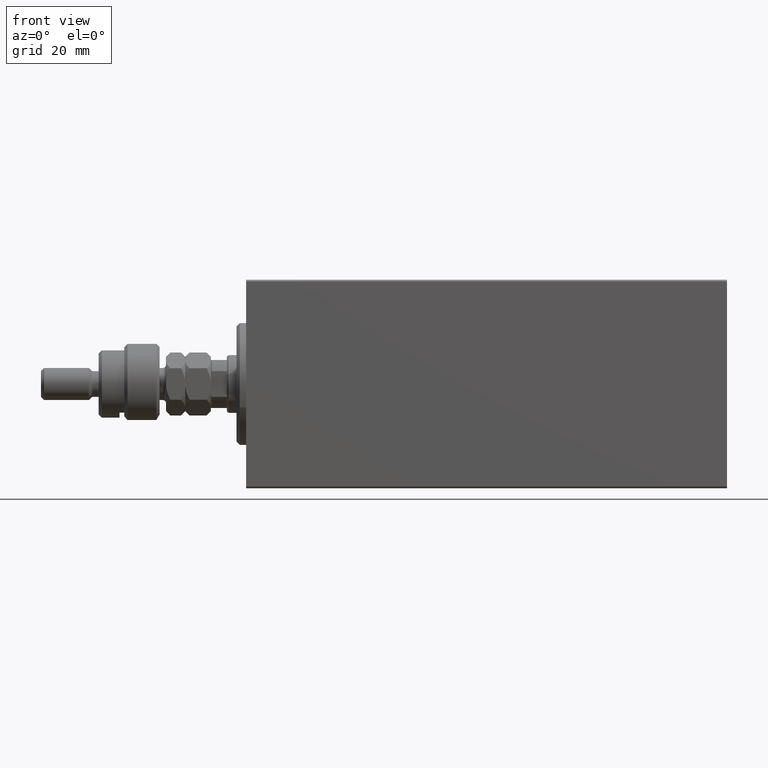
[diagram: clean part render]
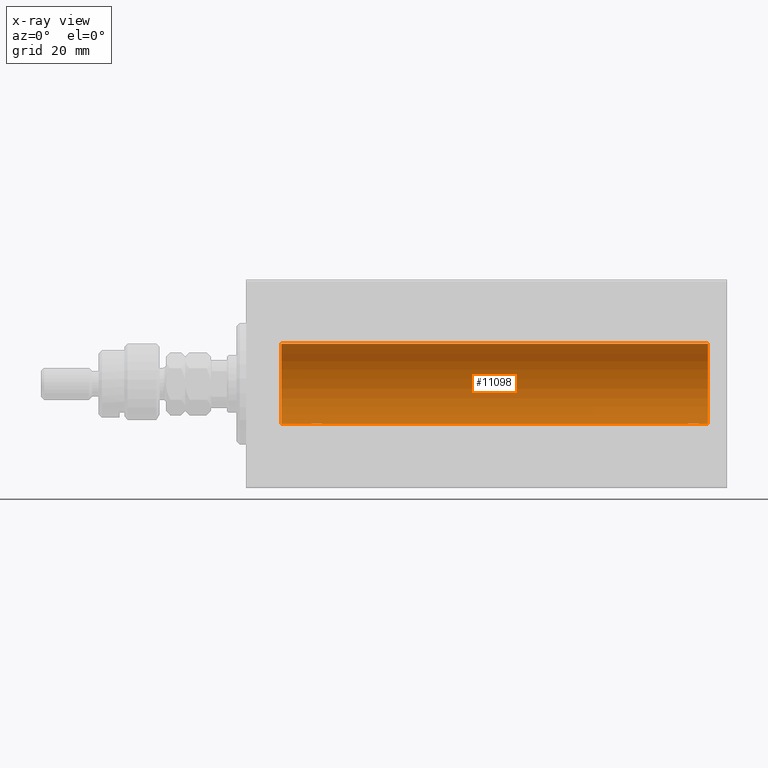
[diagram: x-ray — body ghosted, one internal face saturated and labeled with its STEP entity id]
A machine part, front view, then the same camera in x-ray: the body is ghosted and one INTERNAL B-rep face — a face not visible from any outside direction — is saturated and labeled: STEP entity #11098.
In plain terms, the highlighted cylindrical surface (partial cylindrical patch) has radius 12.5 mm, axis along (-1, -0, -0).
Its self-contained STEP definition (entity closure, byte-faithful):
#395 = AXIS2_PLACEMENT_3D ( 'NONE', #39551, #13985, #21550 ) ;
#512 = VERTEX_POINT ( 'NONE', #21574 ) ;
#549 = CARTESIAN_POINT ( 'NONE',  ( 23.73470742397611843, 1.003863686549172352, -12.46009879577771606 ) ) ;
#1251 = VECTOR ( 'NONE', #22426, 1000.000000000000000 ) ;
#1399 = ORIENTED_EDGE ( 'NONE', *, *, #12259, .F. ) ;
#1955 = CARTESIAN_POINT ( 'NONE',  ( 139.6299262936026651, 2.000049200055382226, -12.33895470450623399 ) ) ;
#2183 = CARTESIAN_POINT ( 'NONE',  ( 140.7198079059457712, 1.590288205413975087, -12.39864157855464910 ) ) ;
#2521 = CARTESIAN_POINT ( 'NONE',  ( 20.40963319990594016, 1.219754986802279451, -12.44082361696003503 ) ) ;
#3767 = VERTEX_POINT ( 'NONE', #12211 ) ;
#4094 = CARTESIAN_POINT ( 'NONE',  ( 22.12992629360264729, 2.000049200055402210, -12.33895470450623044 ) ) ;
#4812 = CARTESIAN_POINT ( 'NONE',  ( 23.21980790594580313, 1.590288205413975309, -12.39864157855465088 ) ) ;
#5043 = CARTESIAN_POINT ( 'NONE',  ( 138.9743641282951216, 1.947190906025026980, -12.34781876294798586 ) ) ;
#5165 = B_SPLINE_CURVE_WITH_KNOTS ( 'NONE', 3,
 ( #23705, #34379, #12138, #38150, #5742, #9067, #37687, #30594, #41930, #41251, #20389, #5043, #27492, #1955, #20153, #16385, #16157, #9509, #34597, #2183, #30819, #23931, #44805, #41486, #38375, #8835, #15919, #31047, #27035, #34828 ),
 .UNSPECIFIED., .F., .F.,
 ( 4, 2, 2, 2, 2, 2, 2, 2, 2, 2, 2, 2, 2, 2, 4 ),
 ( 2.902486787407742216E-18, 0.0003914362731607407692, 0.0007828725463214786110, 0.001174308819482216236, 0.001565745092642954186, 0.002348617638964488417, 0.003131490185286022430, 0.003522926458446789220, 0.003914362731607556010, 0.004305799004768322800, 0.004697235277929090458, 0.005088671551089857248, 0.005480107824250624038, 0.005871544097411390828, 0.006262980370572158485 ),
 .UNSPECIFIED. ) ;
#5742 = CARTESIAN_POINT ( 'NONE',  ( 137.6025227029819291, 0.6455696738844706184, -12.48390768591463207 ) ) ;
#6156 = ORIENTED_EDGE ( 'NONE', *, *, #14126, .F. ) ;
#6531 = CARTESIAN_POINT ( 'NONE',  ( 144.0000000000000000, 1.530808498934191521E-15, -12.50000000000000000 ) ) ;
#6560 = CARTESIAN_POINT ( 'NONE',  ( 137.4999999999999716, -1.407690443847321693E-14, -12.50000000000000000 ) ) ;
#6730 = VERTEX_POINT ( 'NONE', #34072 ) ;
#6767 = CARTESIAN_POINT ( 'NONE',  ( 20.01301208516349206, 0.2624928479599882847, -12.49789934882883458 ) ) ;
#7004 = CARTESIAN_POINT ( 'NONE',  ( 22.88656313533016373, 1.797558627508998086, -12.37018026341338839 ) ) ;
#7237 = CIRCLE ( 'NONE', #10992, 12.50000000000000000 ) ;
#8835 = CARTESIAN_POINT ( 'NONE',  ( 141.3977303139365915, 0.6448065707252957912, -12.48394649977302251 ) ) ;
#9067 = CARTESIAN_POINT ( 'NONE',  ( 137.7030078837138092, 0.8876934327477919995, -12.46903010196599659 ) ) ;
#9509 = CARTESIAN_POINT ( 'NONE',  ( 140.3865631353301353, 1.797558627508986318, -12.37018026341339016 ) ) ;
#9629 = CARTESIAN_POINT ( 'NONE',  ( 144.0000000000000000, 0.000000000000000000, 12.50000000000000000 ) ) ;
#10311 = LINE ( 'NONE', #9629, #23895 ) ;
#10762 = ORIENTED_EDGE ( 'NONE', *, *, #14294, .T. ) ;
#10992 = AXIS2_PLACEMENT_3D ( 'NONE', #30956, #34056, #12976 ) ;
#11098 = ADVANCED_FACE ( 'NONE', ( #39790 ), #46193, .F. ) ;
#11147 = CIRCLE ( 'NONE', #37625, 12.50000000000000000 ) ;
#12138 = CARTESIAN_POINT ( 'NONE',  ( 137.5130120851634672, 0.2624928479599758502, -12.49789934882883458 ) ) ;
#12211 = CARTESIAN_POINT ( 'NONE',  ( 144.0000000000000000, 1.530808498934191521E-15, -12.50000000000000000 ) ) ;
#12259 = EDGE_CURVE ( 'NONE', #25271, #3767, #7237, .T. ) ;
#12377 = CARTESIAN_POINT ( 'NONE',  ( 11.00000000000001066, 0.000000000000000000, 0.000000000000000000 ) ) ;
#12976 = DIRECTION ( 'NONE',  ( 0.000000000000000000, 0.000000000000000000, 1.000000000000000000 ) ) ;
#13697 = EDGE_CURVE ( 'NONE', #44841, #6730, #5165, .T. ) ;
#13985 = DIRECTION ( 'NONE',  ( -1.000000000000000000, -0.000000000000000000, -0.000000000000000000 ) ) ;
#14126 = EDGE_CURVE ( 'NONE', #44528, #32967, #18163, .T. ) ;
#14172 = CARTESIAN_POINT ( 'NONE',  ( 19.99999999999999645, -3.966047509268588167E-15, -12.50000000000000000 ) ) ;
#14294 = EDGE_CURVE ( 'NONE', #25271, #20516, #10311, .T. ) ;
#14301 = EDGE_CURVE ( 'NONE', #44528, #512, #19274, .T. ) ;
#14973 = CARTESIAN_POINT ( 'NONE',  ( 23.93561774521849728, 0.5201193324741352209, -12.48983485452574982 ) ) ;
#15327 = CARTESIAN_POINT ( 'NONE',  ( 144.0000000000000000, 1.530808498934191521E-15, -12.50000000000000000 ) ) ;
#15455 = CARTESIAN_POINT ( 'NONE',  ( 24.00000000000000000, 1.530808426277417854E-15, -12.50000000000000000 ) ) ;
#15691 = CARTESIAN_POINT ( 'NONE',  ( 20.49398366327207910, 1.322451657002076120, -12.43019346654084956 ) ) ;
#15919 = CARTESIAN_POINT ( 'NONE',  ( 141.4356177452185079, 0.5201193324741381074, -12.48983485452574982 ) ) ;
#16157 = CARTESIAN_POINT ( 'NONE',  ( 140.1441523377029057, 1.897967064543077287, -12.35517291625592229 ) ) ;
#16385 = CARTESIAN_POINT ( 'NONE',  ( 140.0193735085155140, 1.935814255713552923, -12.34922241902462936 ) ) ;
#16411 = CARTESIAN_POINT ( 'NONE',  ( 144.0000000000000000, 0.000000000000000000, 12.50000000000000000 ) ) ;
#16946 = CARTESIAN_POINT ( 'NONE',  ( 20.26446744561862801, 1.002494658017155871, -12.46021263690096958 ) ) ;
#18163 = LINE ( 'NONE', #21954, #1251 ) ;
#18746 = CARTESIAN_POINT ( 'NONE',  ( 22.51937350851555308, 1.935814255713574905, -12.34922241902463114 ) ) ;
#19274 = B_SPLINE_CURVE_WITH_KNOTS ( 'NONE', 3,
 ( #21191, #39184, #6767, #35626, #24045, #38495, #16946, #2521, #15691, #32959, #29652, #44572, #43860, #4094, #44335, #18746, #26328, #7004, #44099, #4812, #37230, #28518, #40546, #549, #36981, #29889, #14973, #26570, #41028, #15455 ),
 .UNSPECIFIED., .F., .F.,
 ( 4, 2, 2, 2, 2, 2, 2, 2, 2, 2, 2, 2, 2, 2, 4 ),
 ( 3.611342868676865251E-19, 0.0003914362731607586585, 0.0007828725463215168833, 0.001174308819482275217, 0.001565745092643033550, 0.002348617638964549999, 0.003131490185286066666, 0.003522926458446830420, 0.003914362731607594174, 0.004305799004768357495, 0.004697235277929121683, 0.005088671551089885003, 0.005480107824250649191, 0.005871544097411412512, 0.006262980370572176700 ),
 .UNSPECIFIED. ) ;
#20150 = DIRECTION ( 'NONE',  ( 0.000000000000000000, 0.000000000000000000, 1.000000000000000000 ) ) ;
#20153 = CARTESIAN_POINT ( 'NONE',  ( 139.7626946245459862, 1.986986967296519468, -12.34109209020652997 ) ) ;
#20389 = CARTESIAN_POINT ( 'NONE',  ( 138.4931687955249799, 1.747608771958124807, -12.37764291807175709 ) ) ;
#20516 = VERTEX_POINT ( 'NONE', #22690 ) ;
#21191 = CARTESIAN_POINT ( 'NONE',  ( 19.99999999999999645, -3.966047509268588167E-15, -12.50000000000000000 ) ) ;
#21550 = DIRECTION ( 'NONE',  ( 0.000000000000000000, 0.000000000000000000, 1.000000000000000000 ) ) ;
#21574 = CARTESIAN_POINT ( 'NONE',  ( 24.00000000000000000, 1.530808426277417854E-15, -12.50000000000000000 ) ) ;
#21954 = CARTESIAN_POINT ( 'NONE',  ( 144.0000000000000000, 1.530808498934191521E-15, -12.50000000000000000 ) ) ;
#22031 = ORIENTED_EDGE ( 'NONE', *, *, #37325, .F. ) ;
#22426 = DIRECTION ( 'NONE',  ( -1.000000000000000000, -0.000000000000000000, -0.000000000000000000 ) ) ;
#22690 = CARTESIAN_POINT ( 'NONE',  ( 11.00000000000001066, 0.000000000000000000, 12.50000000000000000 ) ) ;
#22803 = EDGE_CURVE ( 'NONE', #20516, #32967, #11147, .T. ) ;
#23705 = CARTESIAN_POINT ( 'NONE',  ( 137.4999999999999716, -1.407690443847321693E-14, -12.50000000000000000 ) ) ;
#23895 = VECTOR ( 'NONE', #24733, 1000.000000000000000 ) ;
#23931 = CARTESIAN_POINT ( 'NONE',  ( 141.0073355036432190, 1.321095788880527255, -12.43034574091278444 ) ) ;
#24045 = CARTESIAN_POINT ( 'NONE',  ( 20.10252270298193622, 0.6455696738844897142, -12.48390768591463207 ) ) ;
#24733 = DIRECTION ( 'NONE',  ( -1.000000000000000000, -0.000000000000000000, -0.000000000000000000 ) ) ;
#24940 = EDGE_LOOP ( 'NONE', ( #29191, #1399, #10762, #46668, #6156, #32929, #22031, #46145 ) ) ;
#25271 = VERTEX_POINT ( 'NONE', #16411 ) ;
#26328 = CARTESIAN_POINT ( 'NONE',  ( 22.64415233770293412, 1.897967064543090165, -12.35517291625592051 ) ) ;
#26438 = DIRECTION ( 'NONE',  ( -1.000000000000000000, -0.000000000000000000, -0.000000000000000000 ) ) ;
#26570 = CARTESIAN_POINT ( 'NONE',  ( 23.98690384766256400, 0.2633501011236120681, -12.49788564268284041 ) ) ;
#27035 = CARTESIAN_POINT ( 'NONE',  ( 141.4999999999999432, 0.1306394121199381253, -12.49999999999999822 ) ) ;
#27492 = CARTESIAN_POINT ( 'NONE',  ( 139.2378819366837774, 1.999901172190657217, -12.33897869807161385 ) ) ;
#28518 = CARTESIAN_POINT ( 'NONE',  ( 23.50733550364322255, 1.321095788880538136, -12.43034574091277911 ) ) ;
#29191 = ORIENTED_EDGE ( 'NONE', *, *, #37516, .F. ) ;
#29225 = LINE ( 'NONE', #6531, #33988 ) ;
#29652 = CARTESIAN_POINT ( 'NONE',  ( 20.99316879552500481, 1.747608771958139906, -12.37764291807175354 ) ) ;
#29889 = CARTESIAN_POINT ( 'NONE',  ( 23.89773031393658087, 0.6448065707253023415, -12.48394649977302073 ) ) ;
#30000 = LINE ( 'NONE', #15327, #44641 ) ;
#30357 = DIRECTION ( 'NONE',  ( -1.000000000000000000, 0.000000000000000000, 0.000000000000000000 ) ) ;
#30594 = CARTESIAN_POINT ( 'NONE',  ( 137.9096331999059544, 1.219754986802259689, -12.44082361696003680 ) ) ;
#30819 = CARTESIAN_POINT ( 'NONE',  ( 140.8210283350069574, 1.507394620545628117, -12.40913174964213184 ) ) ;
#30956 = CARTESIAN_POINT ( 'NONE',  ( 144.0000000000000000, 0.000000000000000000, 0.000000000000000000 ) ) ;
#31047 = CARTESIAN_POINT ( 'NONE',  ( 141.4869038476625178, 0.2633501011236181744, -12.49788564268283864 ) ) ;
#32929 = ORIENTED_EDGE ( 'NONE', *, *, #14301, .T. ) ;
#32959 = CARTESIAN_POINT ( 'NONE',  ( 20.77033506126850426, 1.598680238462369951, -12.39873273758732175 ) ) ;
#32967 = VERTEX_POINT ( 'NONE', #41490 ) ;
#33988 = VECTOR ( 'NONE', #46525, 1000.000000000000000 ) ;
#34056 = DIRECTION ( 'NONE',  ( -1.000000000000000000, 0.000000000000000000, 0.000000000000000000 ) ) ;
#34072 = CARTESIAN_POINT ( 'NONE',  ( 141.5000000000000000, 1.530808426269529245E-15, -12.50000000000000000 ) ) ;
#34379 = CARTESIAN_POINT ( 'NONE',  ( 137.4999999999999716, 0.1323736289504179875, -12.50000000000000000 ) ) ;
#34597 = CARTESIAN_POINT ( 'NONE',  ( 140.5033581429918002, 1.734998657226763052, -12.37922086519036036 ) ) ;
#34828 = CARTESIAN_POINT ( 'NONE',  ( 141.5000000000000000, 1.530808426269529245E-15, -12.50000000000000000 ) ) ;
#35626 = CARTESIAN_POINT ( 'NONE',  ( 20.06395648222636652, 0.5184196815546032733, -12.48990118705761532 ) ) ;
#36981 = CARTESIAN_POINT ( 'NONE',  ( 23.79742491916155700, 0.8868029758979399935, -12.46909283808506430 ) ) ;
#37230 = CARTESIAN_POINT ( 'NONE',  ( 23.32102833500698225, 1.507394620545640773, -12.40913174964213184 ) ) ;
#37325 = EDGE_CURVE ( 'NONE', #44841, #512, #30000, .T. ) ;
#37516 = EDGE_CURVE ( 'NONE', #3767, #6730, #29225, .T. ) ;
#37625 = AXIS2_PLACEMENT_3D ( 'NONE', #12377, #30357, #20150 ) ;
#37687 = CARTESIAN_POINT ( 'NONE',  ( 137.7644674456186351, 1.002494658017137219, -12.46021263690097136 ) ) ;
#38150 = CARTESIAN_POINT ( 'NONE',  ( 137.5639564822263878, 0.5184196815545896175, -12.48990118705761709 ) ) ;
#38375 = CARTESIAN_POINT ( 'NONE',  ( 141.2974249191615002, 0.8868029758979300015, -12.46909283808506075 ) ) ;
#38495 = CARTESIAN_POINT ( 'NONE',  ( 20.20300788371381273, 0.8876934327478117615, -12.46903010196599304 ) ) ;
#39184 = CARTESIAN_POINT ( 'NONE',  ( 19.99999999999999645, 0.1323736289504319763, -12.50000000000000000 ) ) ;
#39551 = CARTESIAN_POINT ( 'NONE',  ( 144.0000000000000000, 0.000000000000000000, 0.000000000000000000 ) ) ;
#39790 = FACE_OUTER_BOUND ( 'NONE', #24940, .T. ) ;
#40546 = CARTESIAN_POINT ( 'NONE',  ( 23.58991408680628155, 1.220297236145721609, -12.44076681548080288 ) ) ;
#41028 = CARTESIAN_POINT ( 'NONE',  ( 24.00000000000000711, 0.1306394121199392910, -12.50000000000000533 ) ) ;
#41251 = CARTESIAN_POINT ( 'NONE',  ( 138.2703350612684972, 1.598680238462354186, -12.39873273758732175 ) ) ;
#41486 = CARTESIAN_POINT ( 'NONE',  ( 141.2347074239760616, 1.003863686549169687, -12.46009879577771606 ) ) ;
#41490 = CARTESIAN_POINT ( 'NONE',  ( 11.00000000000001066, 1.530808498934191521E-15, -12.50000000000000000 ) ) ;
#41930 = CARTESIAN_POINT ( 'NONE',  ( 137.9939836632721324, 1.322451657002064351, -12.43019346654085666 ) ) ;
#43860 = CARTESIAN_POINT ( 'NONE',  ( 21.73788193668374902, 1.999901172190678533, -12.33897869807161385 ) ) ;
#44099 = CARTESIAN_POINT ( 'NONE',  ( 23.00335814299181436, 1.734998657226765939, -12.37922086519035325 ) ) ;
#44335 = CARTESIAN_POINT ( 'NONE',  ( 22.26269462454597914, 1.986986967296540119, -12.34109209020652465 ) ) ;
#44528 = VERTEX_POINT ( 'NONE', #14172 ) ;
#44572 = CARTESIAN_POINT ( 'NONE',  ( 21.47436412829510033, 1.947190906025044077, -12.34781876294798053 ) ) ;
#44641 = VECTOR ( 'NONE', #26438, 1000.000000000000000 ) ;
#44805 = CARTESIAN_POINT ( 'NONE',  ( 141.0899140868062887, 1.220297236145716502, -12.44076681548080643 ) ) ;
#44841 = VERTEX_POINT ( 'NONE', #6560 ) ;
#46145 = ORIENTED_EDGE ( 'NONE', *, *, #13697, .T. ) ;
#46193 = CYLINDRICAL_SURFACE ( 'NONE', #395, 12.50000000000000000 ) ;
#46525 = DIRECTION ( 'NONE',  ( -1.000000000000000000, -0.000000000000000000, -0.000000000000000000 ) ) ;
#46668 = ORIENTED_EDGE ( 'NONE', *, *, #22803, .T. ) ;